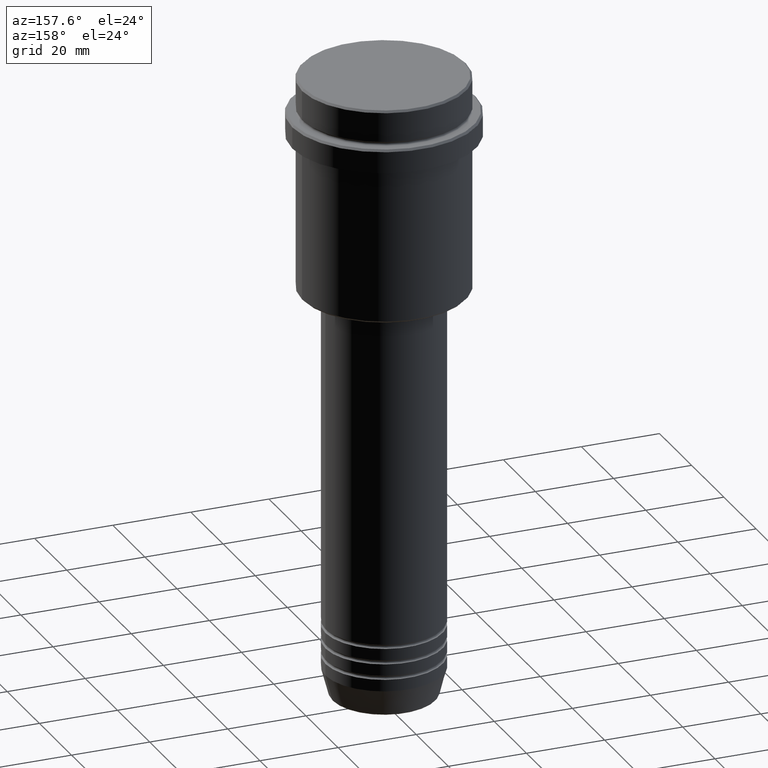
[diagram: clean part render]
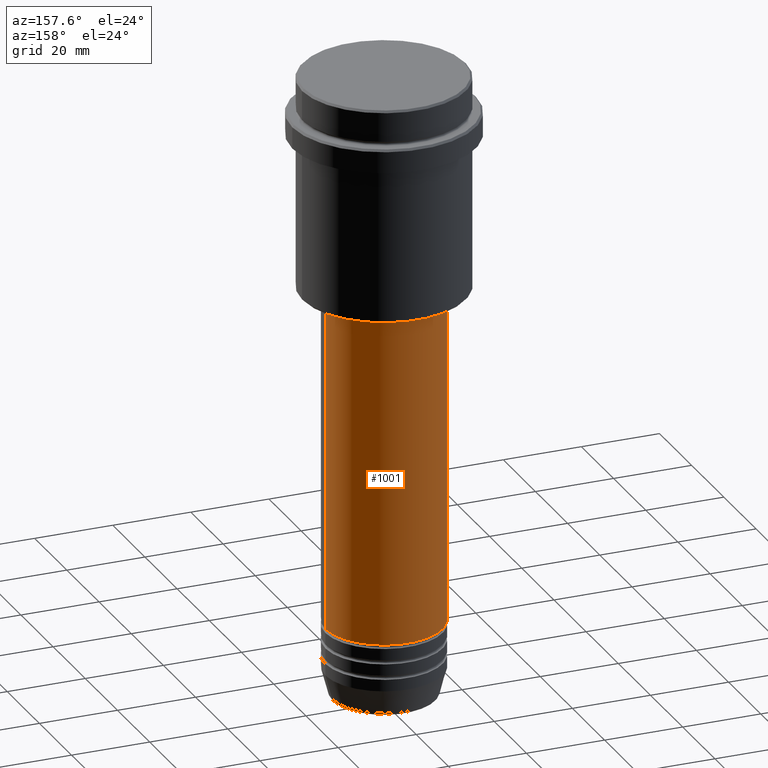
[diagram: same view with one face highlighted and labeled with its STEP entity id]
A machine part, auxiliary view. The second image highlights one B-rep face of the part: STEP entity #1001.
In plain terms, the highlighted cylindrical surface (partial cylindrical patch) has radius 15 mm, axis along (-0, -0, 1).
Its self-contained STEP definition (entity closure, byte-faithful):
#3 = CARTESIAN_POINT ( 'NONE',  ( -15.00000000000000000, 1.836970198721029589E-15, -140.9999999999999147 ) ) ;
#26 = LINE ( 'NONE', #1346, #516 ) ;
#29 = ORIENTED_EDGE ( 'NONE', *, *, #1295, .F. ) ;
#36 = LINE ( 'NONE', #806, #259 ) ;
#74 = CARTESIAN_POINT ( 'NONE',  ( 15.00000000000000000, 0.000000000000000000, -55.99999999999999289 ) ) ;
#118 = ORIENTED_EDGE ( 'NONE', *, *, #1117, .T. ) ;
#159 = VERTEX_POINT ( 'NONE', #3 ) ;
#173 = VERTEX_POINT ( 'NONE', #253 ) ;
#206 = EDGE_CURVE ( 'NONE', #173, #902, #26, .T. ) ;
#209 = DIRECTION ( 'NONE',  ( 1.000000000000000000, 0.000000000000000000, 0.000000000000000000 ) ) ;
#253 = CARTESIAN_POINT ( 'NONE',  ( 15.00000000000000000, 0.000000000000000000, -140.9999999999999147 ) ) ;
#259 = VECTOR ( 'NONE', #466, 1000.000000000000000 ) ;
#364 = ORIENTED_EDGE ( 'NONE', *, *, #1216, .T. ) ;
#402 = DIRECTION ( 'NONE',  ( -0.000000000000000000, -0.000000000000000000, 1.000000000000000000 ) ) ;
#466 = DIRECTION ( 'NONE',  ( -0.000000000000000000, -0.000000000000000000, 1.000000000000000000 ) ) ;
#515 = CARTESIAN_POINT ( 'NONE',  ( 0.000000000000000000, 0.000000000000000000, -140.9999999999999147 ) ) ;
#516 = VECTOR ( 'NONE', #1247, 1000.000000000000000 ) ;
#573 = DIRECTION ( 'NONE',  ( 1.000000000000000000, 0.000000000000000000, 0.000000000000000000 ) ) ;
#667 = CYLINDRICAL_SURFACE ( 'NONE', #1353, 15.00000000000000000 ) ;
#744 = DIRECTION ( 'NONE',  ( 1.000000000000000000, 0.000000000000000000, 0.000000000000000000 ) ) ;
#762 = CARTESIAN_POINT ( 'NONE',  ( 0.000000000000000000, 0.000000000000000000, 0.000000000000000000 ) ) ;
#783 = FACE_OUTER_BOUND ( 'NONE', #1245, .T. ) ;
#801 = CIRCLE ( 'NONE', #1354, 15.00000000000000000 ) ;
#806 = CARTESIAN_POINT ( 'NONE',  ( -15.00000000000000000, 1.836970198721029589E-15, 0.000000000000000000 ) ) ;
#893 = CARTESIAN_POINT ( 'NONE',  ( -15.00000000000000000, 1.836970198721029589E-15, -55.99999999999999289 ) ) ;
#902 = VERTEX_POINT ( 'NONE', #74 ) ;
#1001 = ADVANCED_FACE ( 'NONE', ( #783 ), #667, .T. ) ;
#1105 = DIRECTION ( 'NONE',  ( -0.000000000000000000, -0.000000000000000000, 1.000000000000000000 ) ) ;
#1117 = EDGE_CURVE ( 'NONE', #159, #1392, #36, .T. ) ;
#1216 = EDGE_CURVE ( 'NONE', #173, #159, #1242, .T. ) ;
#1242 = CIRCLE ( 'NONE', #1375, 15.00000000000000000 ) ;
#1245 = EDGE_LOOP ( 'NONE', ( #364, #118, #29, #1278 ) ) ;
#1247 = DIRECTION ( 'NONE',  ( -0.000000000000000000, -0.000000000000000000, 1.000000000000000000 ) ) ;
#1274 = DIRECTION ( 'NONE',  ( -0.000000000000000000, -0.000000000000000000, 1.000000000000000000 ) ) ;
#1278 = ORIENTED_EDGE ( 'NONE', *, *, #206, .F. ) ;
#1295 = EDGE_CURVE ( 'NONE', #902, #1392, #801, .T. ) ;
#1346 = CARTESIAN_POINT ( 'NONE',  ( 15.00000000000000000, 0.000000000000000000, 0.000000000000000000 ) ) ;
#1353 = AXIS2_PLACEMENT_3D ( 'NONE', #762, #1105, #573 ) ;
#1354 = AXIS2_PLACEMENT_3D ( 'NONE', #1380, #1274, #744 ) ;
#1375 = AXIS2_PLACEMENT_3D ( 'NONE', #515, #402, #209 ) ;
#1380 = CARTESIAN_POINT ( 'NONE',  ( 0.000000000000000000, 0.000000000000000000, -55.99999999999999289 ) ) ;
#1392 = VERTEX_POINT ( 'NONE', #893 ) ;